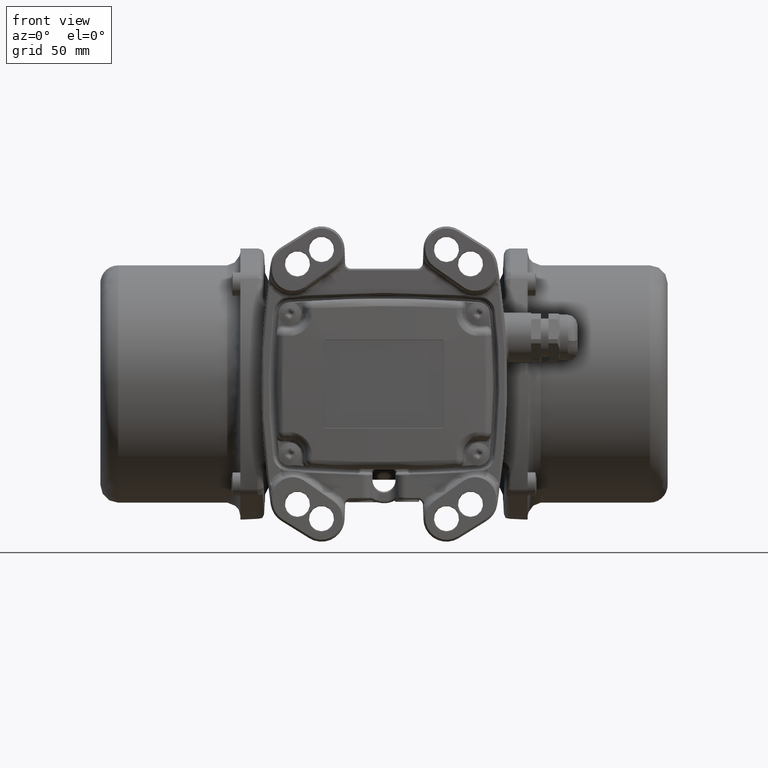
[diagram: clean part render]
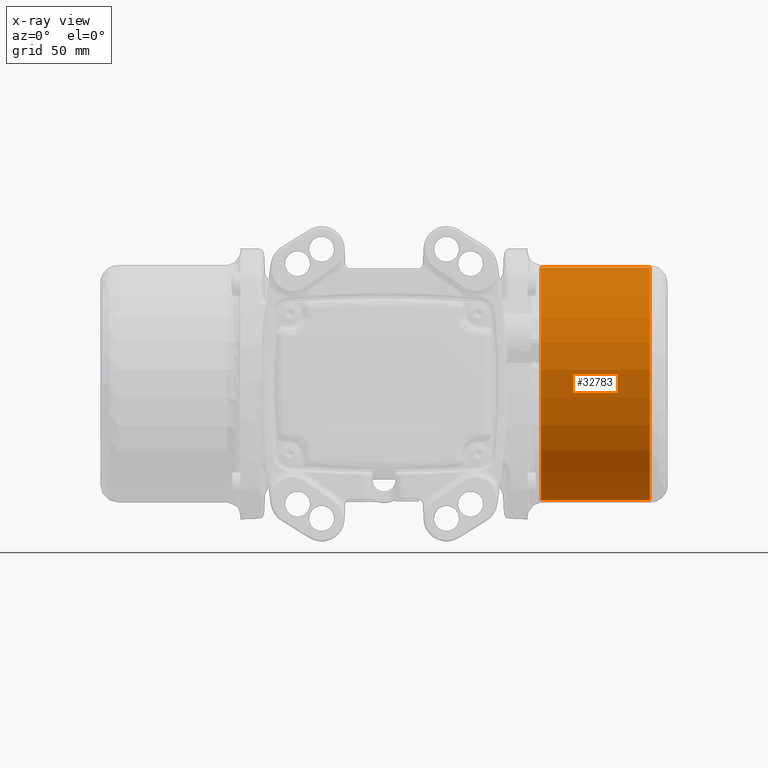
[diagram: x-ray — body ghosted, one internal face saturated and labeled with its STEP entity id]
A machine part, front view, then the same camera in x-ray: the body is ghosted and one INTERNAL B-rep face — a face not visible from any outside direction — is saturated and labeled: STEP entity #32783.
In plain terms, the highlighted cylindrical surface (bore or boss wall) has radius 60.5 mm, axis along (1, 0, -0).
Its self-contained STEP definition (entity closure, byte-faithful):
#10007 = CARTESIAN_POINT ( 'NONE',  ( 138.3000000000000100, 2.627844508045484200E-013, -60.49999999999999300 ) ) ;
#16813 = VERTEX_POINT ( 'NONE', #10007 ) ;
#18677 = EDGE_LOOP ( 'NONE', ( #78339 ) ) ;
#20348 = CARTESIAN_POINT ( 'NONE',  ( 147.5000000000000000, 7.074083066854050500E-015, 6.416948074122060000E-015 ) ) ;
#31060 = EDGE_CURVE ( 'NONE', #16813, #16813, #38985, .T. ) ;
#32342 = ORIENTED_EDGE ( 'NONE', *, *, #49936, .F. ) ;
#32783 = ADVANCED_FACE ( 'NONE', ( #140296, #113129 ), #86026, .F. ) ;
#34038 = CARTESIAN_POINT ( 'NONE',  ( 81.50000000000000000, 1.581732600435725000E-015, 1.129178231899894000E-014 ) ) ;
#38497 = DIRECTION ( 'NONE',  ( 1.000000000000000000, 8.321743130936849400E-017, -7.386112492237709800E-017 ) ) ;
#38985 = CIRCLE ( 'NONE', #52960, 60.50000000000000000 ) ;
#49936 = EDGE_CURVE ( 'NONE', #105187, #105187, #80569, .T. ) ;
#51161 = AXIS2_PLACEMENT_3D ( 'NONE', #34038, #129109, #113243 ) ;
#52960 = AXIS2_PLACEMENT_3D ( 'NONE', #54466, #113268, #131352 ) ;
#54466 = CARTESIAN_POINT ( 'NONE',  ( 138.3000000000000100, 6.308482698807859800E-015, 7.096470423407929400E-015 ) ) ;
#56535 = EDGE_LOOP ( 'NONE', ( #32342 ) ) ;
#78339 = ORIENTED_EDGE ( 'NONE', *, *, #31060, .F. ) ;
#80569 = CIRCLE ( 'NONE', #51161, 60.50000000000000000 ) ;
#86026 = CYLINDRICAL_SURFACE ( 'NONE', #92601, 60.50000000000000000 ) ;
#92601 = AXIS2_PLACEMENT_3D ( 'NONE', #20348, #38497, #117694 ) ;
#96181 = CARTESIAN_POINT ( 'NONE',  ( 81.50000000000000000, -2.548942355053048500E-013, 60.50000000000001400 ) ) ;
#105187 = VERTEX_POINT ( 'NONE', #96181 ) ;
#113129 = FACE_OUTER_BOUND ( 'NONE', #18677, .T. ) ;
#113243 = DIRECTION ( 'NONE',  ( 0.0000000000000000000, -4.239272200094885300E-015, 1.000000000000000000 ) ) ;
#113268 = DIRECTION ( 'NONE',  ( -1.000000000000000000, -8.321743130936849400E-017, 7.386112492237709800E-017 ) ) ;
#117694 = DIRECTION ( 'NONE',  ( 0.0000000000000000000, 4.239272200094885300E-015, -1.000000000000000000 ) ) ;
#129109 = DIRECTION ( 'NONE',  ( 1.000000000000000000, 8.321743130936849400E-017, -7.386112492237709800E-017 ) ) ;
#131352 = DIRECTION ( 'NONE',  ( 0.0000000000000000000, 4.239272200094885300E-015, -1.000000000000000000 ) ) ;
#140296 = FACE_OUTER_BOUND ( 'NONE', #56535, .T. ) ;